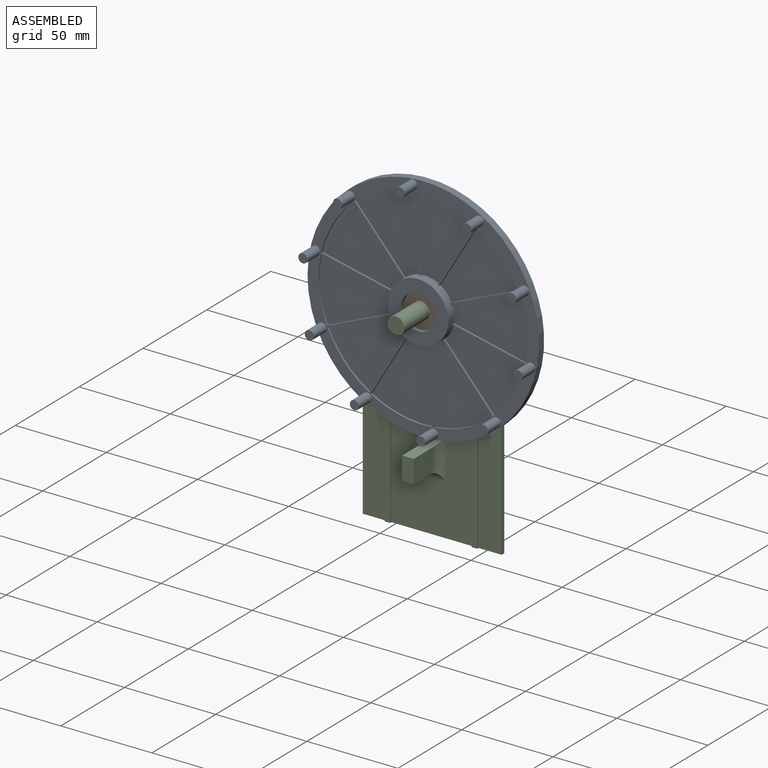
[diagram: assembled view]
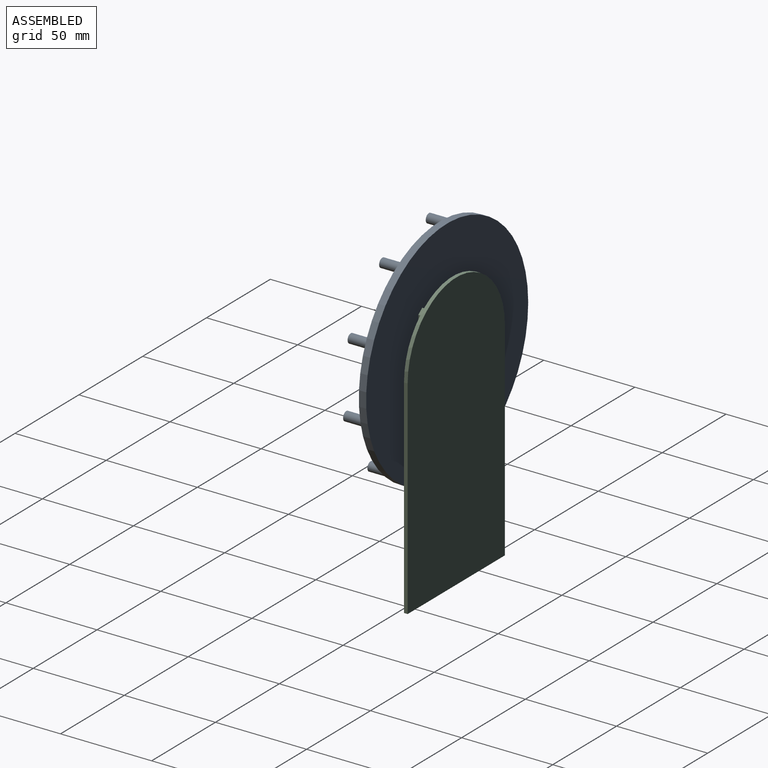
[diagram: assembled view, second angle]
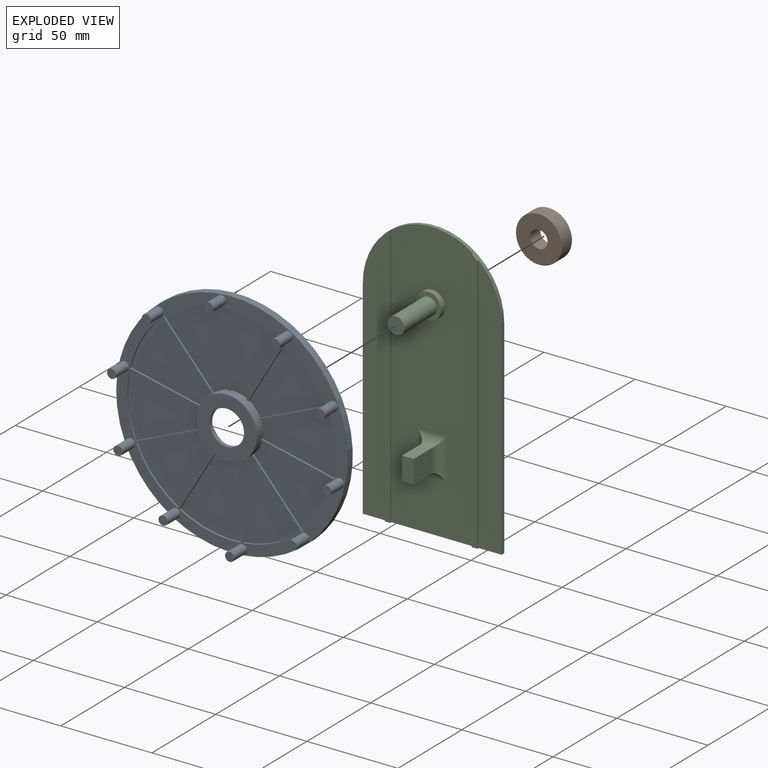
[diagram: exploded view]
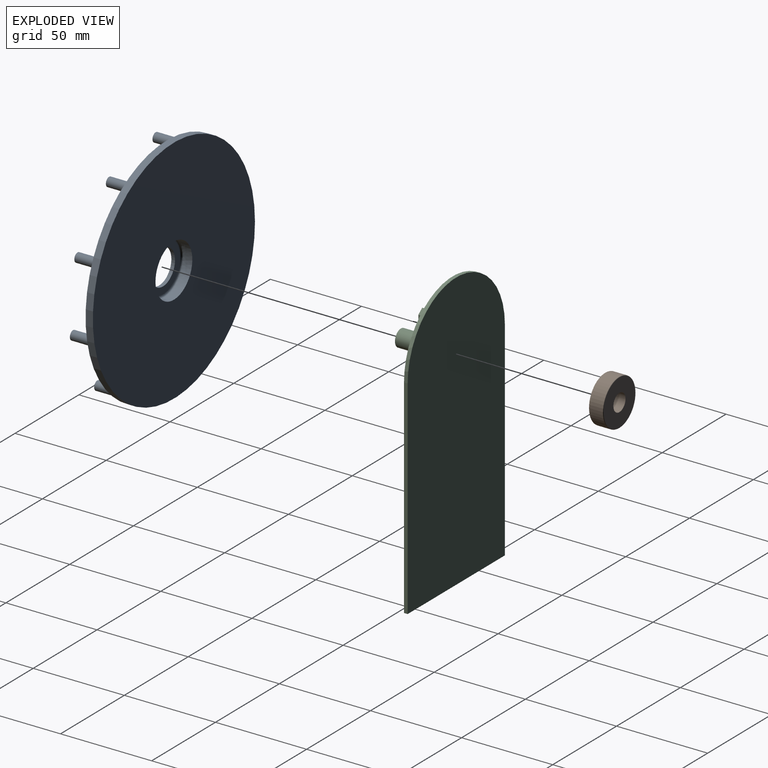
[diagram: exploded view, second angle]
ASSEMBLY  parts=3 mates=5
PART A: 71 faces, bbox 127x14x127 mm
  f0: plane 43.91x32.89mm, normal (0,-1,0), area 912.7mm2, adj f11,f28,f42,f65
  f1: plane 44.47x40.67mm, normal (0,-1,0), area 912.7mm2, adj f26,f29,f30,f65
  f2: plane 41.72x34.58mm, normal (0,-1,0), area 912.7mm2, adj f24,f27,f31,f65
  f3: plane 44.47x40.67mm, normal (0,-1,0), area 912.7mm2, adj f22,f25,f32,f65
  f4: plane 43.91x32.89mm, normal (0,-1,0), area 912.7mm2, adj f20,f23,f33,f65
  f5: plane 43.91x32.89mm, normal (0,-1,0), area 912.7mm2, adj f18,f21,f34,f65
  f6: plane 44.47x40.67mm, normal (0,-1,0), area 912.7mm2, adj f16,f19,f35,f65
  f7: plane 41.72x34.58mm, normal (0,-1,0), area 912.7mm2, adj f14,f17,f36,f65
  f8: plane 44.47x40.67mm, normal (0,-1,0), area 912.7mm2, adj f12,f15,f37,f65
  f9: plane 43.91x32.89mm, normal (0,-1,0), area 912.7mm2, adj f10,f13,f38,f65
  f10: plane 41.07x1mm, normal (-1,0,0), area 41.1mm2, adj f9,f38,f43,f65
  f11: plane 41.07x1mm, normal (1,0,0), area 41.1mm2, adj f0,f42,f43,f65
  f12: plane 33.22x24.14mm, normal (-0.81,0,-0.59), area 41.1mm2, adj f8,f37,f43,f65
  f13: plane 33.22x24.14mm, normal (0.81,0,0.59), area 41.1mm2, adj f9,f38,f43,f65
  f14: plane 39.06x12.69mm, normal (-0.31,0,-0.95), area 41.1mm2, adj f7,f36,f43,f65
  f15: plane 39.06x12.69mm, normal (0.31,0,0.95), area 41.1mm2, adj f8,f37,f43,f65
  f16: plane 39.06x12.69mm, normal (0.31,0,-0.95), area 41.1mm2, adj f6,f35,f43,f65
  f17: plane 39.06x12.69mm, normal (-0.31,0,0.95), area 41.1mm2, adj f7,f36,f43,f65
  f18: plane 33.22x24.14mm, normal (0.81,0,-0.59), area 41.1mm2, adj f5,f34,f43,f65
  f19: plane 33.22x24.14mm, normal (-0.81,0,0.59), area 41.1mm2, adj f6,f35,f43,f65
  f20: plane 41.07x1mm, normal (1,0,0), area 41.1mm2, adj f4,f33,f43,f65
  f21: plane 41.07x1mm, normal (-1,0,0), area 41.1mm2, adj f5,f34,f43,f65
  f22: plane 33.22x24.14mm, normal (0.81,0,0.59), area 41.1mm2, adj f3,f32,f43,f65
  f23: plane 33.22x24.14mm, normal (-0.81,0,-0.59), area 41.1mm2, adj f4,f33,f43,f65
  f24: plane 39.06x12.69mm, normal (0.31,0,0.95), area 41.1mm2, adj f2,f31,f43,f65
  f25: plane 39.06x12.69mm, normal (-0.31,0,-0.95), area 41.1mm2, adj f3,f32,f43,f65
  f26: plane 39.06x12.69mm, normal (-0.31,0,0.95), area 41.1mm2, adj f1,f30,f43,f65
  f27: plane 39.06x12.69mm, normal (0.31,0,-0.95), area 41.1mm2, adj f2,f31,f43,f65
  f28: plane 33.22x24.14mm, normal (-0.81,0,0.59), area 41.1mm2, adj f0,f42,f43,f65
  f29: plane 33.22x24.14mm, normal (0.81,0,-0.59), area 41.1mm2, adj f1,f30,f43,f65
  f30: cylinder r=57.5mm len=27.98mm, axis (0,1,0), area 35.1mm2, adj f1,f26,f29,f43
  f31: cylinder r=57.5mm len=34.58mm, axis (0,1,0), area 35.1mm2, adj f2,f24,f27,f43
  f32: cylinder r=57.5mm len=27.98mm, axis (0,1,0), area 35.1mm2, adj f3,f22,f25,f43
  f33: cylinder r=57.5mm len=32.89mm, axis (0,1,0), area 35.1mm2, adj f4,f20,f23,f43
  f34: cylinder r=57.5mm len=32.89mm, axis (0,1,0), area 35.1mm2, adj f5,f18,f21,f43
  f35: cylinder r=57.5mm len=27.98mm, axis (0,1,0), area 35.1mm2, adj f6,f16,f19,f43
  f36: cylinder r=57.5mm len=34.58mm, axis (0,1,0), area 35.1mm2, adj f7,f14,f17,f43
  f37: cylinder r=57.5mm len=27.98mm, axis (0,1,0), area 35.1mm2, adj f8,f12,f15,f43
  f38: cylinder r=57.5mm len=32.89mm, axis (0,1,0), area 35.1mm2, adj f9,f10,f13,f43
  f39: cylinder r=14.44mm len=28.88mm, axis (0,1,0), area 298.3mm2, adj f41,f64,f70
  f40: cylinder r=63.5mm len=127mm, axis (0,1,0), area 1595.9mm2, adj f41,f43
  f41: plane 127x127mm, normal (0,1,0), area 12012.8mm2, adj f39,f40
  f42: cylinder r=57.5mm len=32.89mm, axis (0,1,0), area 35.1mm2, adj f0,f11,f28,f43
  f43: plane 127x127mm, normal (0,-1,0), area 2495.1mm2, adj f10,f11,f12,f13,f14,f15,f16,f17
  f44: cylinder r=2.5mm len=10mm, axis (0,1,0), area 157.1mm2, adj f43,f45
  f45: plane 5x5mm, normal (0,-1,0), area 19.6mm2, adj f44
  f46: cylinder r=2.5mm len=10mm, axis (0,1,0), area 157.1mm2, adj f43,f47
  f47: plane 5x5mm, normal (0,-1,0), area 19.6mm2, adj f46
  f48: cylinder r=2.5mm len=10mm, axis (0,1,0), area 157.1mm2, adj f43,f49
  f49: plane 5x5mm, normal (0,-1,0), area 19.6mm2, adj f48
  f50: cylinder r=2.5mm len=10mm, axis (0,1,0), area 157.1mm2, adj f43,f51
  f51: plane 5x5mm, normal (0,-1,0), area 19.6mm2, adj f50
  f52: cylinder r=2.5mm len=10mm, axis (0,1,0), area 157.1mm2, adj f43,f53
  f53: plane 5x5mm, normal (0,-1,0), area 19.6mm2, adj f52
  f54: cylinder r=2.5mm len=10mm, axis (0,1,0), area 157.1mm2, adj f43,f55
  f55: plane 5x5mm, normal (0,-1,0), area 19.6mm2, adj f54
  f56: cylinder r=2.5mm len=10mm, axis (0,1,0), area 157.1mm2, adj f43,f57
  f57: plane 5x5mm, normal (0,-1,0), area 19.6mm2, adj f56
  f58: cylinder r=2.5mm len=10mm, axis (0,1,0), area 157.1mm2, adj f43,f59
  f59: plane 5x5mm, normal (0,-1,0), area 19.6mm2, adj f58
  f60: cylinder r=2.5mm len=10mm, axis (0,1,0), area 157.1mm2, adj f43,f61
  f61: plane 5x5mm, normal (0,-1,0), area 19.6mm2, adj f60
  f62: cylinder r=2.5mm len=10mm, axis (0,1,0), area 157.1mm2, adj f43,f63
  f63: plane 5x5mm, normal (0,-1,0), area 19.6mm2, adj f62
  f64: extruded ~28.85x28.83mm, area 155.3mm2, adj f39,f69
  f65: cylinder r=16.44mm len=32.88mm, axis (0,1,0), area 506.4mm2, adj f0,f1,f2,f3,f4,f5,f6,f7
  f66: cylinder r=9.44mm len=18.88mm, axis (0,1,0), area 118.6mm2, adj f67,f68
  f67: plane 32.88x32.88mm, normal (0,-1,0), area 569mm2, adj f65,f66
  f68: plane 26.88x26.88mm, normal (0,1,0), area 287.6mm2, adj f66,f69,f70
  f69: bspline ~28.89x28.88mm, area 126.6mm2, adj f64,f68,f70
  f70: torus R=13.44mm, axis (0,-1,0), area 12.4mm2, adj f39,f68,f69
PART B: 6 faces, bbox 27.5x7.9x27.5 mm
  f0: torus R=12.45mm, axis (0,1,0), area 31.6mm2, adj f3,f5
  f1: torus R=12.45mm, axis (0,-1,0), area 31.6mm2, adj f3,f4
  f2: cylinder r=4.76mm len=9.53mm, axis (0,-1,0), area 237.1mm2, adj f4,f5
  f3: cylinder r=12.7mm len=25.4mm, axis (0,-1,0), area 591.8mm2, adj f0,f1
  f4: plane 24.89x24.89mm, normal (0,-1,0), area 415.4mm2, adj f1,f2
  f5: plane 24.89x24.89mm, normal (0,1,0), area 415.4mm2, adj f0,f2
PART C: 27 faces, bbox 76.2x152.4x30.4 mm
  f0: plane 142.7x12.7mm, normal (0,0,1), area 1701.4mm2, adj f3,f4,f5,f15
  f1: plane 152.4x44.8mm, normal (0,0,1), area 6192mm2, adj f3,f5,f8,f13,f16,f23,f24,f25
  f2: plane 114.3x2mm, normal (1,0,0), area 228.6mm2, adj f3,f5,f6,f7
  f3: cylinder r=38.1mm len=76.2mm, axis (0,0,-1), area 247.1mm2, adj f0,f1,f2,f4,f6,f7,f12,f13
  f4: plane 114.3x2mm, normal (-1,0,0), area 228.6mm2, adj f0,f3,f5,f7
  f5: plane 76.2x3mm, normal (0,-1,0), area 158.4mm2, adj f0,f1,f2,f4,f6,f7,f12,f13
  f6: plane 142.7x12.7mm, normal (0,0,1), area 1701.4mm2, adj f2,f3,f5,f12
  f7: plane 152.4x76.2mm, normal (0,0,-1), area 10989.8mm2, adj f2,f3,f4,f5
  f8: cylinder r=7mm len=14mm, axis (0,0,-1), area 131.9mm2, adj f1,f9
  f9: plane 14x14mm, normal (0,0,1), area 87.1mm2, adj f8,f10
  f10: cylinder r=4.61mm len=25.4mm, axis (0,0,-1), area 736.2mm2, adj f9,f11
  f11: plane 9.23x9.23mm, normal (0,0,1), area 66.9mm2, adj f10
  f12: plane 142.7x1mm, normal (1,0,0), area 142.7mm2, adj f3,f5,f6,f14
  f13: plane 145.12x1mm, normal (-1,0,0), area 145.1mm2, adj f1,f3,f5,f14
  f14: plane 145.12x3mm, normal (0,0,1), area 431.9mm2, adj f3,f5,f12,f13
  f15: plane 142.7x1mm, normal (-1,0,0), area 142.7mm2, adj f0,f3,f5,f17
  f16: plane 145.12x1mm, normal (1,0,0), area 145.1mm2, adj f1,f3,f5,f17
  f17: plane 145.12x3mm, normal (0,0,1), area 431.9mm2, adj f3,f5,f15,f16
  f18: plane 13.97x6.35mm, normal (0,1,0), area 88.7mm2, adj f19,f21,f22,f23
  f19: plane 13.97x12.7mm, normal (-1,0,0), area 177.4mm2, adj f18,f20,f22,f24
  f20: plane 13.97x6.35mm, normal (0,-1,0), area 88.7mm2, adj f19,f21,f22,f26
  f21: plane 13.97x12.7mm, normal (1,0,0), area 177.4mm2, adj f18,f20,f22,f25
  f22: plane 12.7x6.35mm, normal (0,0,1), area 80.6mm2, adj f18,f19,f20,f21
  f23: cylinder r=5.08mm len=16.51mm, axis (-1,0,0), area 80.1mm2, adj f1,f18,f24,f25
  f24: cylinder r=5.08mm len=22.86mm, axis (0,-1,0), area 130.8mm2, adj f1,f19,f23,f26
  f25: cylinder r=5.08mm len=22.86mm, axis (0,1,0), area 130.8mm2, adj f1,f21,f23,f26
  f26: cylinder r=5.08mm len=16.51mm, axis (1,0,0), area 80.1mm2, adj f1,f20,f24,f25
PLACE A rot(axis=(0,-1,0),5.4deg) t=(-26.05,53.85,14.11)mm
PLACE B t=(-26.05,41.3,14.11)mm
PLACE C rot(axis=(1,0,0),90deg) t=(12.05,58.85,14.11)mm fixed
MATE cylindrical B.f0 <-> A.f39  axis (0,-1,0) through (-26.05,55.52,14.11)mm
MATE parallel C.f7 <-> A.f40  axis (0,1,0) through (-26.05,58.85,-27.83)mm
MATE planar A.f30 <-> B.f0  axis (0,1,0) through (-26.05,47.85,14.11)mm
MATE cylindrical C.f10 <-> A.f65  axis (0,1,0) through (-26.05,41.15,14.11)mm
MATE planar A.f40 <-> C.f10  axis (0,1,0) through (-26.05,53.85,14.11)mm
